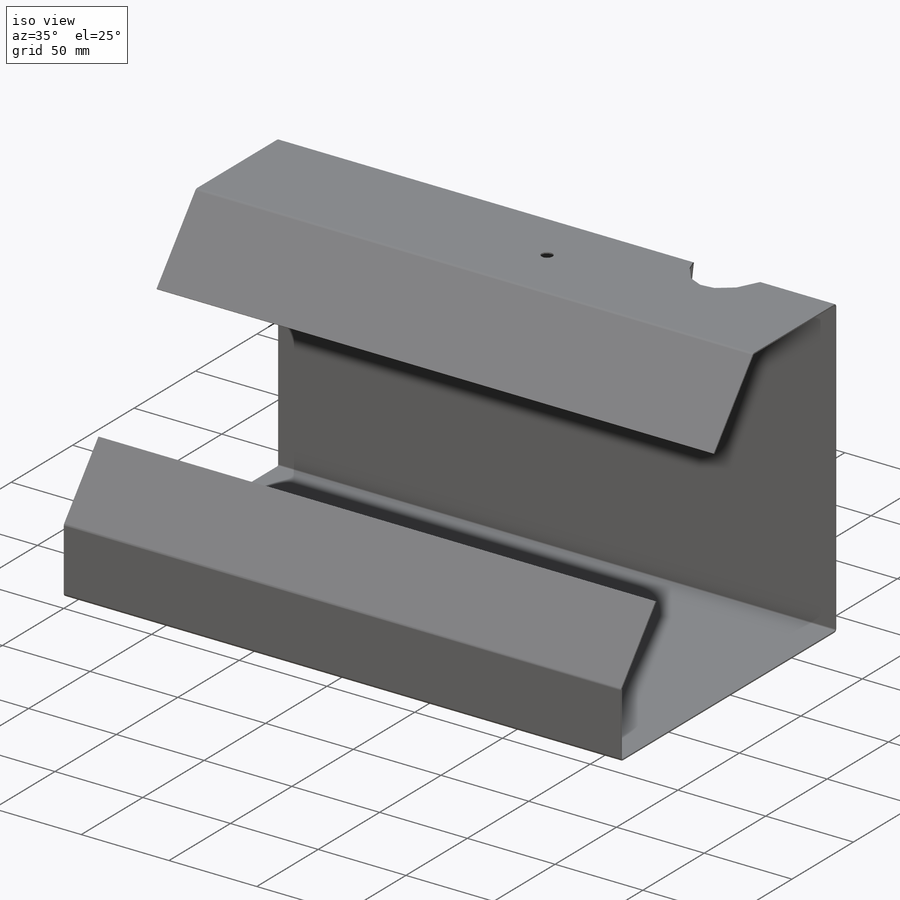
[diagram: iso view]
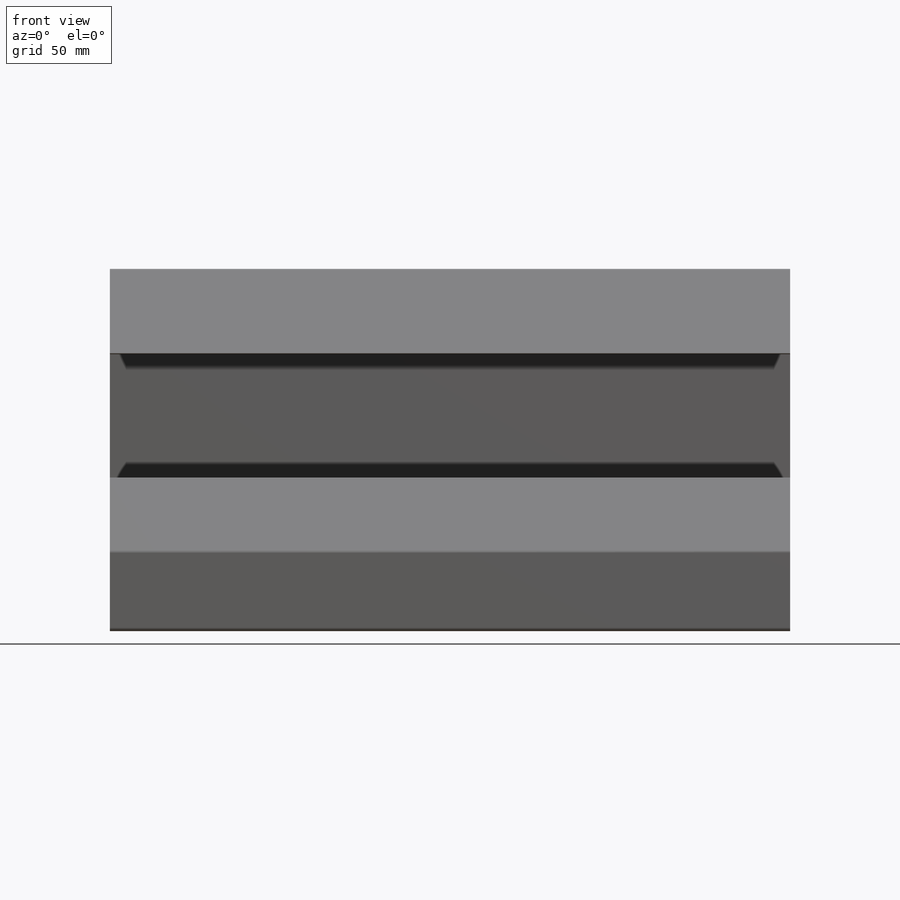
[diagram: front view]
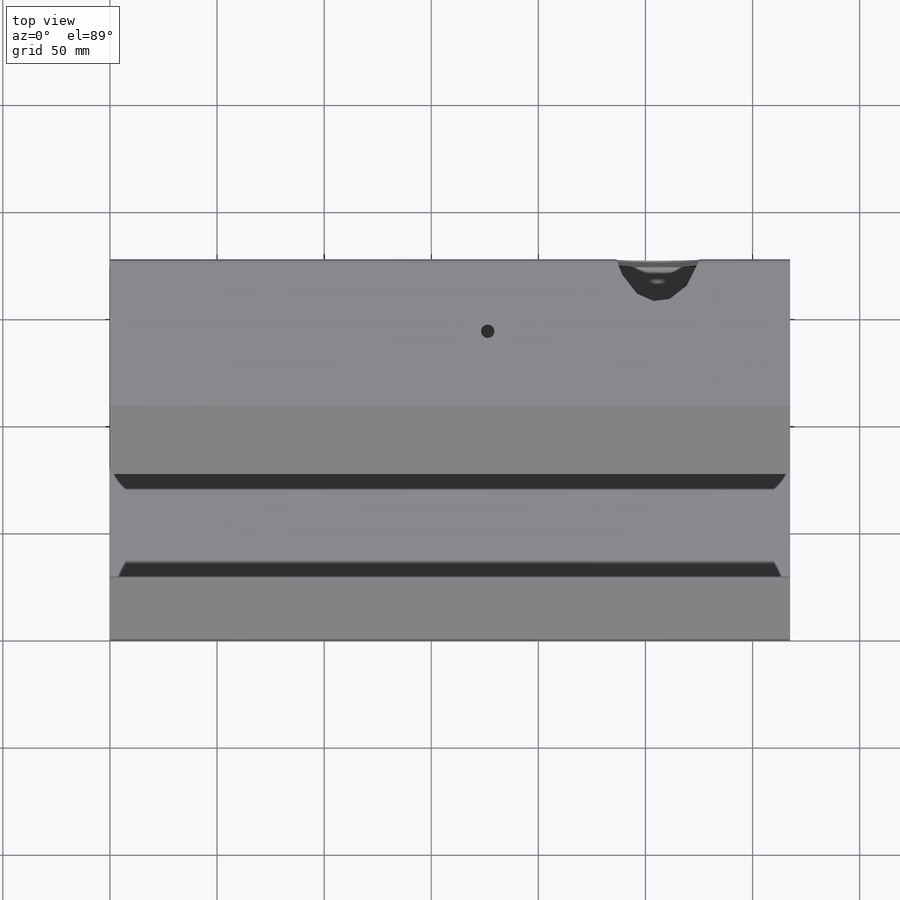
[diagram: top view]
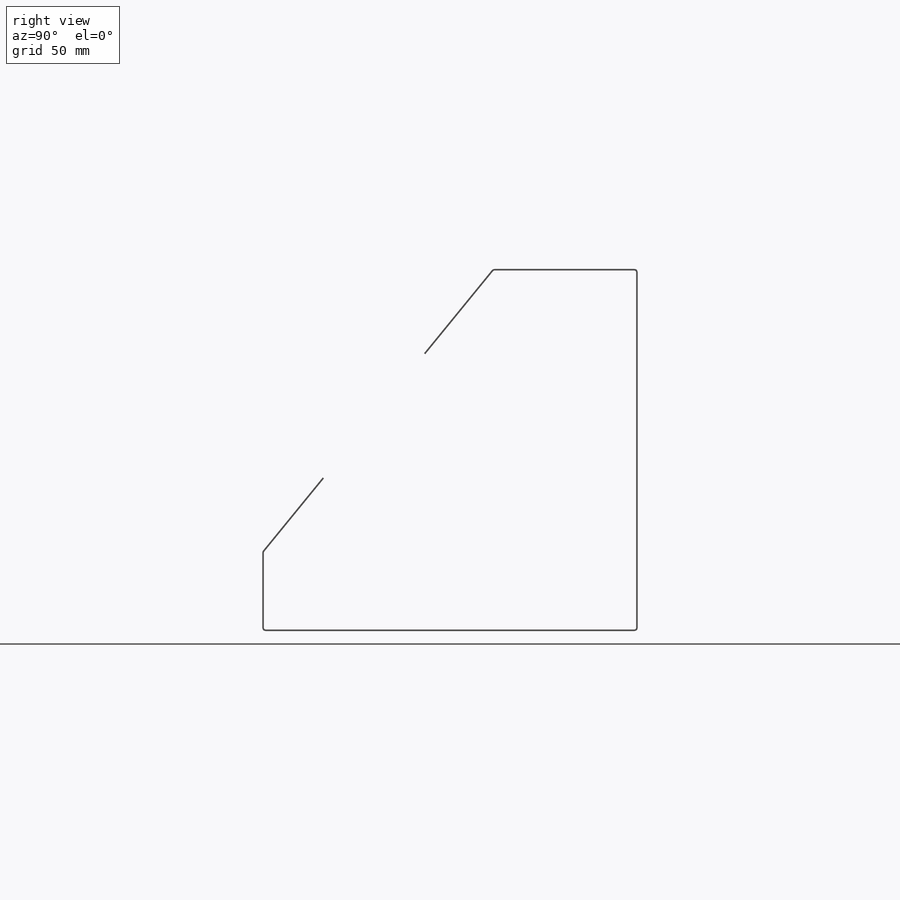
[diagram: right view]
SOLIDWORKS PART (.sldprt)
format: sldprt  version: not decoded by parser v0  size: 382,976 bytes
history: native  units: mm
features: sketch x11, sheet_metal_op x6, cut_extrude x3, material x1, plane x1 + 5 further entries (+11 scaffold rows collapsed; 1 parser-record rows omitted)
feature tree (39):
  scaffold x11  (default folders/planes/origin — collapsed)
  material  "6061-T6 (SS)"
  sketch  "Sketch1"  dims[D1=175.26mm D2=317.5mm]
  sheet_metal_op  "Sheet-Metal1"
  sheet_metal_op  "Base-Flange1"
  sketch  "Sketch6"  dims[c1.D1=0.7366mm c1.D4=90.0deg c1.D5=1.0 c1.D8=0.381mm c1.D9=0.381mm c2.D1=0.7366mm c2.D2=500.0mm c2.D3=0.0mm c2.D6=10.0mm c2.D7=38.1mm c2.Edge-Flange2=0.0]
  sketch  "Sketch9"
  sheet_metal_op  "EdgeBend2"  Edge-Flange3=0
  sketch  "Sketch12"
  sheet_metal_op  "EdgeBend3"  Edge-Flange4=0
  sketch  "Sketch15"
  sheet_metal_op  "EdgeBend4"  Edge-Flange5=0
  sketch  "Sketch18"
  sheet_metal_op  "EdgeBend5"
  plane  "Plane2"
  sketch  "Sketch26"  dims[D1=20.574mm]
  cut_extrude  "Cut-Extrude3"  Depth=52.07mm
  sketch  "Sketch27"  dims[D3=63.246mm D1=64.897mm D2=160.2105mm]
  cut_extrude  "Cut-Extrude4"  Depth=52.07mm
  sketch  "Sketch28"  dims[c1.D1=~5.16732mm c1.D3=6.35mm c2.D1=32.2353mm c2.D2=~141.18996mm]
  cut_extrude  "Cut-Extrude5"  Depth=2.54mm
  "Flat-Pattern1"
  sketch  "Bend-Lines1"
  sketch  "Bounding-Box1"
  "Flatten-<EdgeBend2>1"
  "Flatten-<EdgeBend3>1"
  "Flatten-<EdgeBend4>1"
  "Flatten-<EdgeBend5>1"
  parser-record x1  (decoder bookkeeping rows leaked as tree rows — omitted from the tree; the rows remain in map.json)
decode coverage: 11 of 20 modeling features carry decoded parameters; 5 rows unclassified (native names shown)
note: ~ marks probable driven/reference dimensions
note: suppression state not decoded; provenance and decode notes live in map.json
